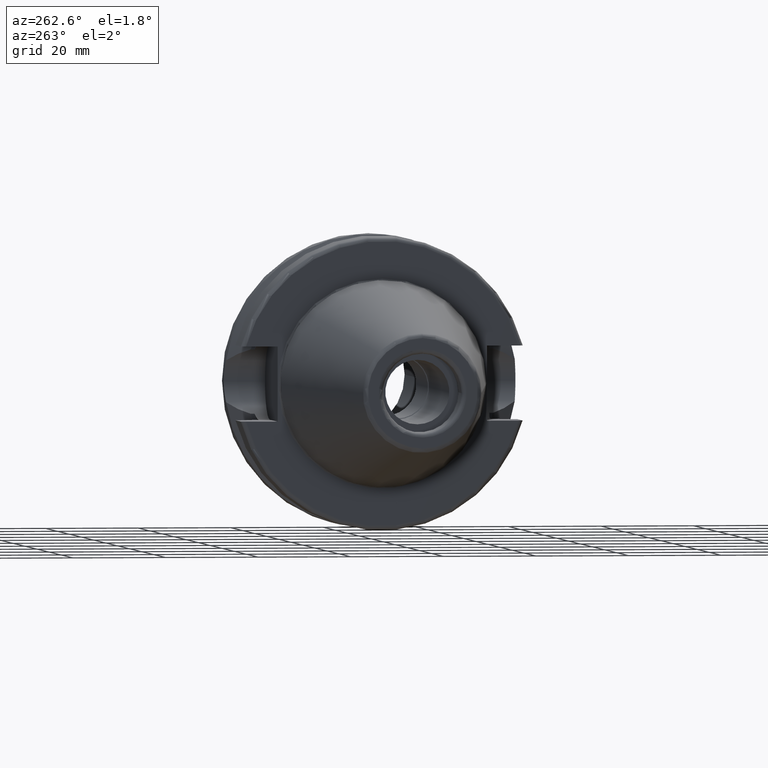
[diagram: clean part render]
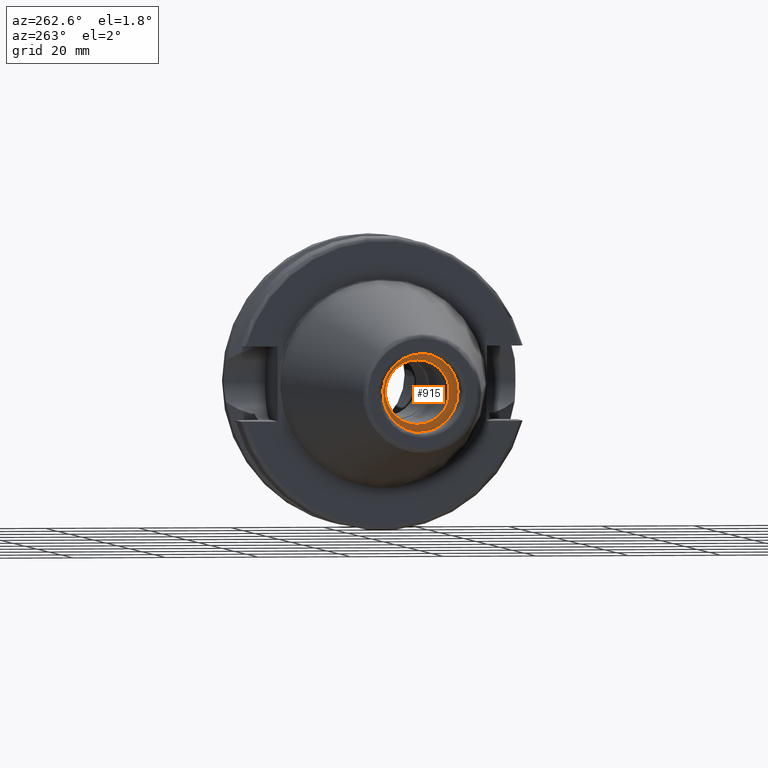
[diagram: same view with one face highlighted and labeled with its STEP entity id]
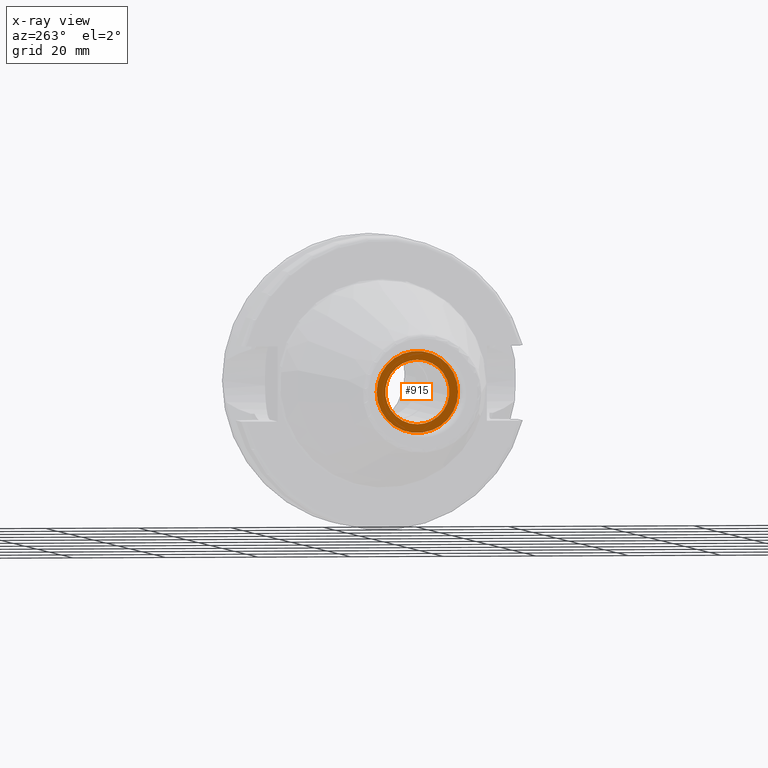
[diagram: x-ray of the same camera — body ghosted, the highlighted face saturated]
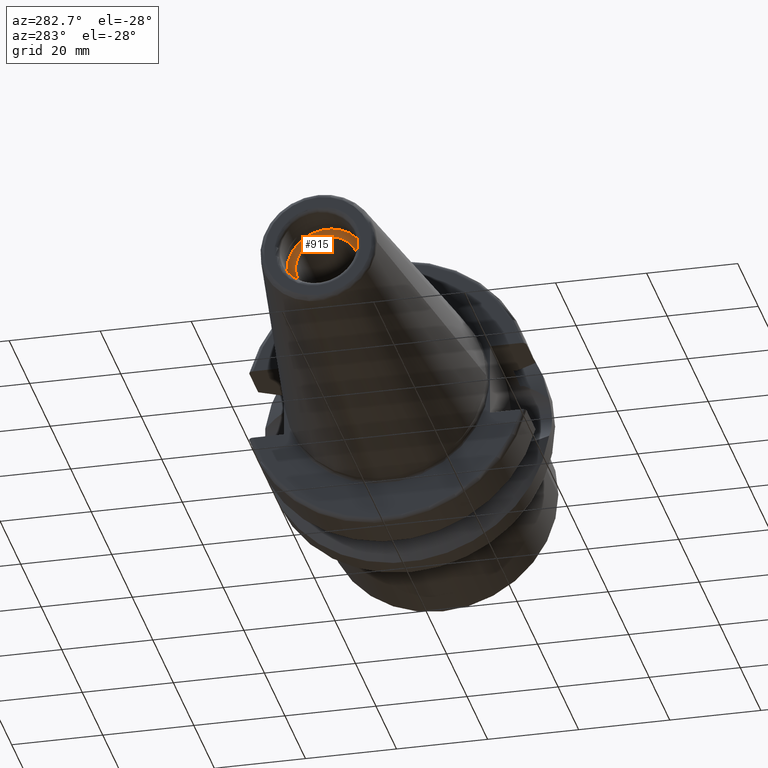
[diagram: same view with one face highlighted and labeled with its STEP entity id]
A machine part, auxiliary view. The second image highlights one B-rep face of the part: STEP entity #915.
The next image is the same camera in x-ray: the body ghosted, the highlighted face saturated — about 0% of this face is hidden behind the body in this view.
A second angle (auxiliary view) of the same face is appended — the face is thin or edge-on in the first view.
In plain terms, the highlighted planar face has unit normal (-1, 0, 0).
Its self-contained STEP definition (entity closure, byte-faithful):
#164=FACE_BOUND('',#295,.T.);
#182=PLANE('',#1050);
#232=FACE_OUTER_BOUND('',#294,.T.);
#294=EDGE_LOOP('',(#835));
#295=EDGE_LOOP('',(#836));
#328=CIRCLE('',#988,6.9175);
#360=CIRCLE('',#1051,8.8);
#393=VERTEX_POINT('',#1517);
#449=VERTEX_POINT('',#1793);
#493=EDGE_CURVE('',#393,#393,#328,.T.);
#579=EDGE_CURVE('',#449,#449,#360,.T.);
#835=ORIENTED_EDGE('',*,*,#579,.F.);
#836=ORIENTED_EDGE('',*,*,#493,.T.);
#915=ADVANCED_FACE('',(#232,#164),#182,.T.);
#988=AXIS2_PLACEMENT_3D('',#1518,#1161,#1162);
#1050=AXIS2_PLACEMENT_3D('',#1792,#1320,#1321);
#1051=AXIS2_PLACEMENT_3D('',#1794,#1322,#1323);
#1161=DIRECTION('center_axis',(1.,0.,0.));
#1162=DIRECTION('ref_axis',(0.,0.,1.));
#1320=DIRECTION('center_axis',(-1.,0.,0.));
#1321=DIRECTION('ref_axis',(0.,0.,1.));
#1322=DIRECTION('center_axis',(1.,0.,0.));
#1323=DIRECTION('ref_axis',(0.,0.,-1.));
#1517=CARTESIAN_POINT('',(-56.4,8.47149423310182E-16,-6.9175));
#1518=CARTESIAN_POINT('Origin',(-56.4,0.,0.));
#1792=CARTESIAN_POINT('Origin',(-56.4,8.8,0.));
#1793=CARTESIAN_POINT('',(-56.4,-8.8,-1.07768918324967E-15));
#1794=CARTESIAN_POINT('Origin',(-56.4,0.,0.));